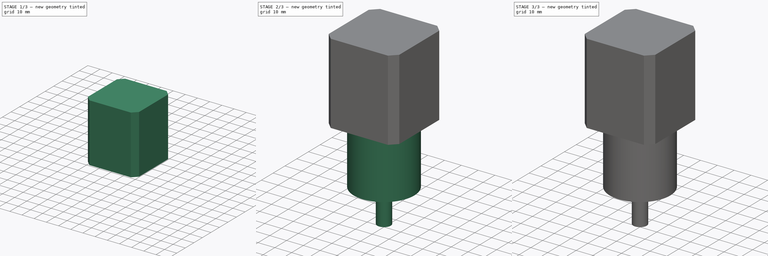
[diagram: build sequence overview — one tinted view per stage of 3, left to right]
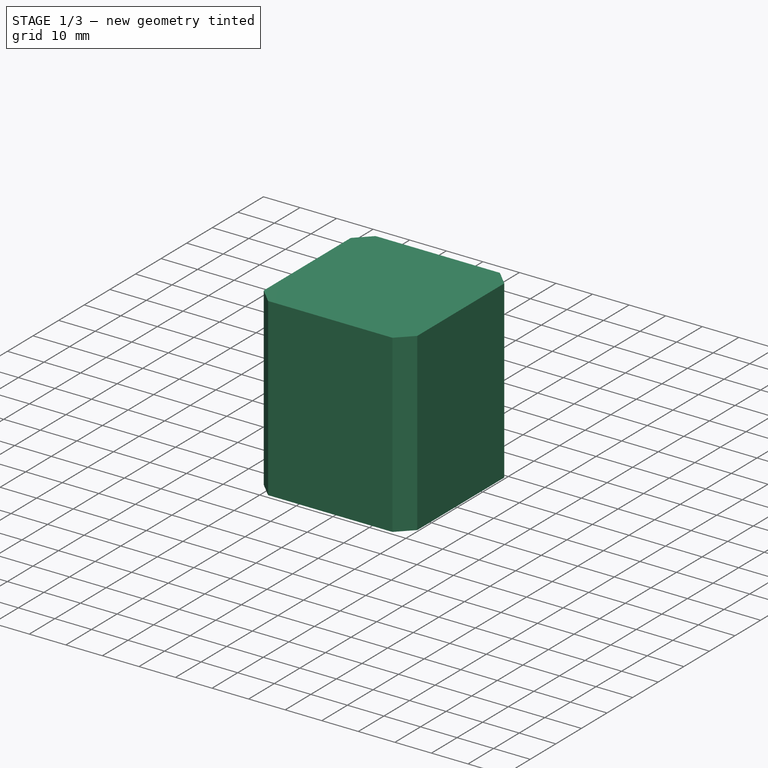
[diagram: stage 1 of 3 — iso view after this stage's code; geometry added in this stage tinted green]
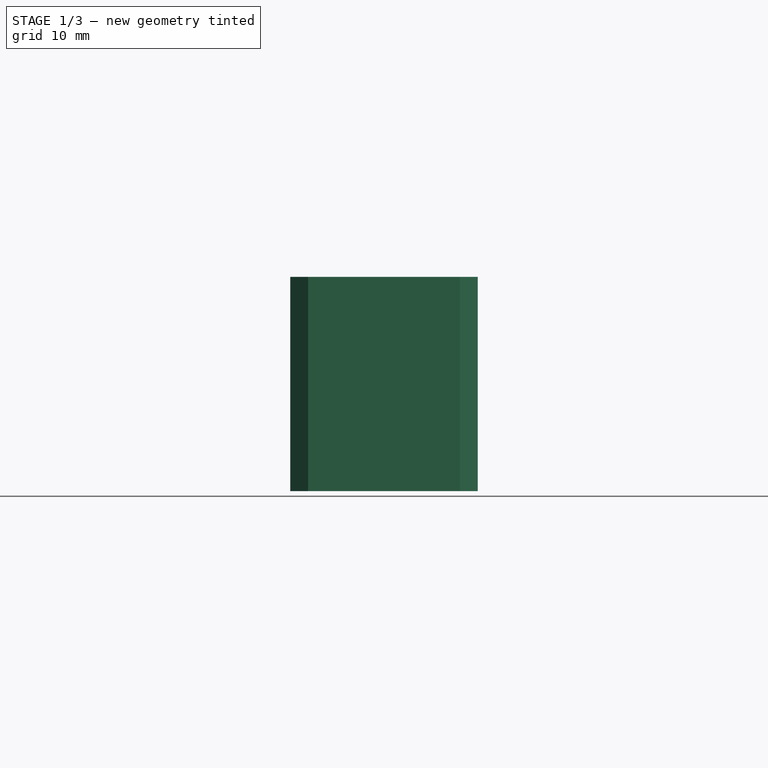
[diagram: stage 1 of 3 — front view after this stage's code; geometry added in this stage tinted green]
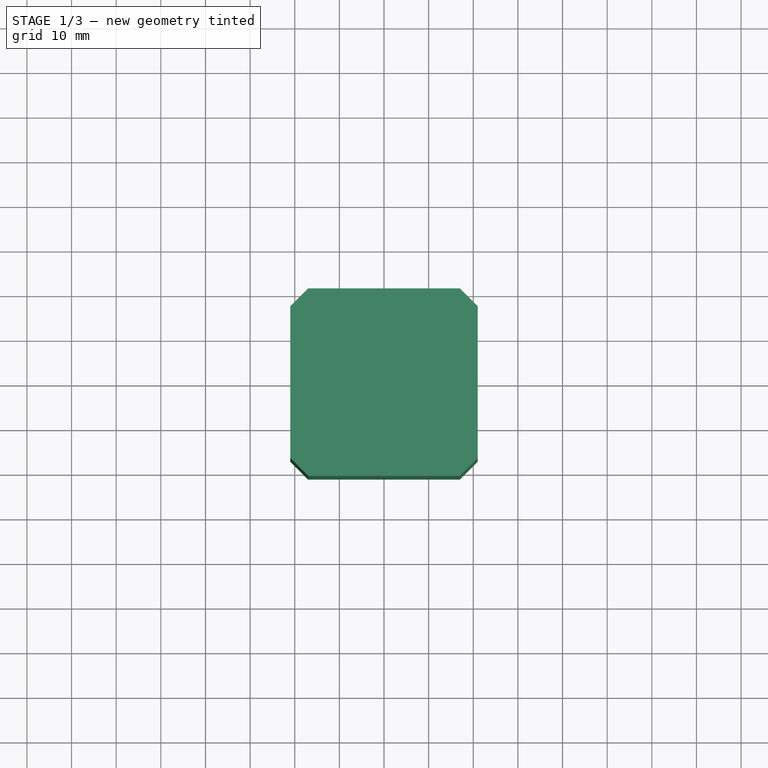
[diagram: stage 1 of 3 — top view after this stage's code; geometry added in this stage tinted green]
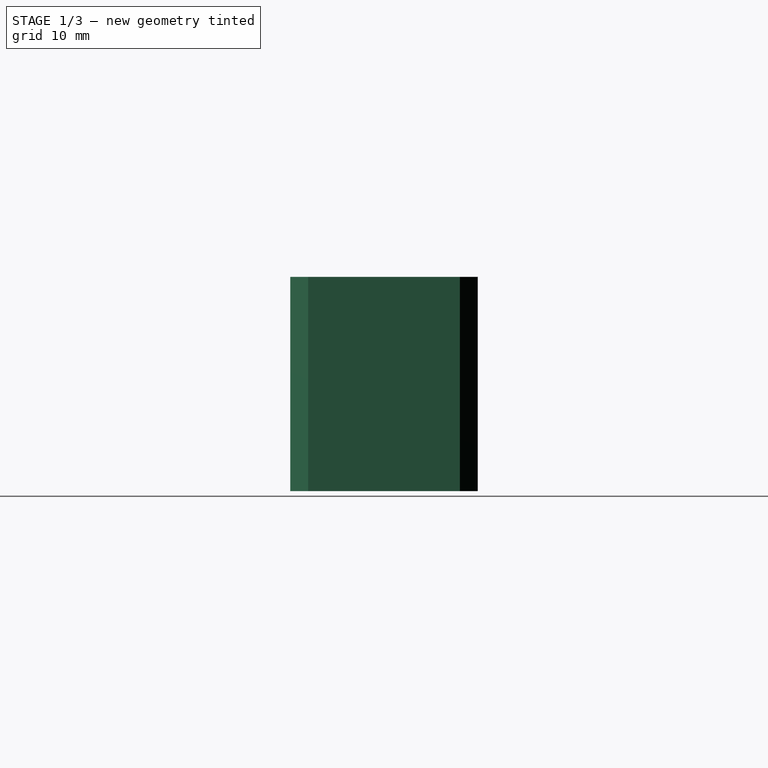
[diagram: stage 1 of 3 — right view after this stage's code; geometry added in this stage tinted green]
FCSTD DOCUMENT  (FreeCAD 0.20R29410 (Git))
Label: Stepper17Geared
License: All rights reserved
LicenseURL: http://en.wikipedia.org/wiki/All_rights_reserved
objects: Sketcher::SketchObject×6, PartDesign::Pad×4, PartDesign::Chamfer×1, PartDesign::CoordinateSystem×1, PartDesign::Pocket×1, PartDesign::Hole×1, PartDesign::Body×1
note: 22 computed .brp shape members not serialized (recipe doc carries the construction recipe); baked Part::Feature solids carry a one-line shape summary decoded from their .brp

FEATURE [Sketcher::SketchObject] Sketch
  FullyConstrained = true
  MapMode = 5
  Support = -> [XY_Plane]
  sketch-geometry (4):
    g0: LineSegment StartX=-21 StartY=21 StartZ=0 EndX=21 EndY=21 EndZ=0
    g1: LineSegment StartX=21 StartY=21 StartZ=0 EndX=21 EndY=-21 EndZ=0
    g2: LineSegment StartX=21 StartY=-21 StartZ=0 EndX=-21 EndY=-21 EndZ=0
    g3: LineSegment StartX=-21 StartY=-21 StartZ=0 EndX=-21 EndY=21 EndZ=0
  constraints (11):
    c: Coincident(g0,g1)
    c: Coincident(g1,g2)
    c: Coincident(g2,g3)
    c: Coincident(g3,g0)
    c: Horizontal(g0)
    c: Horizontal(g2)
    c: Vertical(g1)
    c: Vertical(g3)
    c: Symmetric(g0,g2,g-1)
    c: Equal(g1,g0)
    c: DistanceX(g0,g0) = 42
FEATURE [PartDesign::Pad] Pad  label="Frame"
  Direction = (1,1,1)
  Length = 48
  Length2 = 100
  Profile = -> Sketch
  Type = 0
FEATURE [PartDesign::Chamfer] Chamfer
  Angle = 45
  Base = -> Pad [Edge5,Edge8,Edge2,Edge1]
  BaseFeature = -> Pad
  ChamferType = 0
  FlipDirection = false
  Size = 4
  Size2 = 1
  SupportTransform = false
  UseAllEdges = false
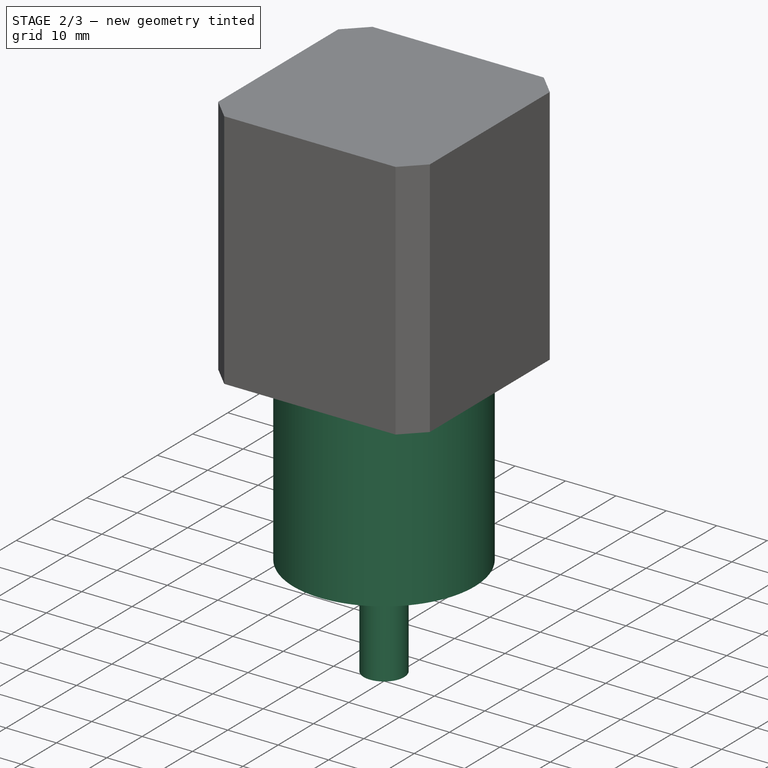
[diagram: stage 2 of 3 — iso view after this stage's code; geometry added in this stage tinted green]
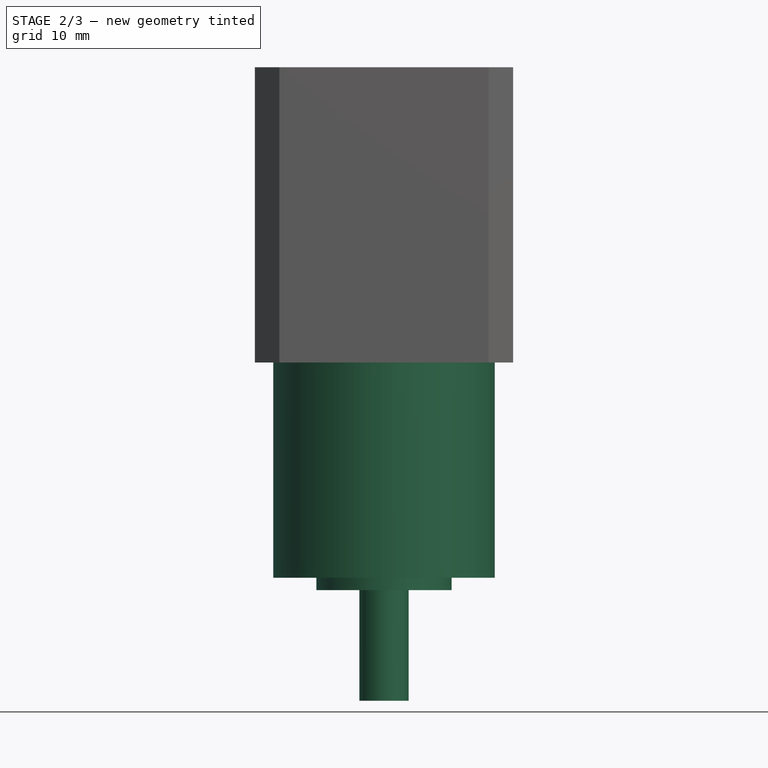
[diagram: stage 2 of 3 — front view after this stage's code; geometry added in this stage tinted green]
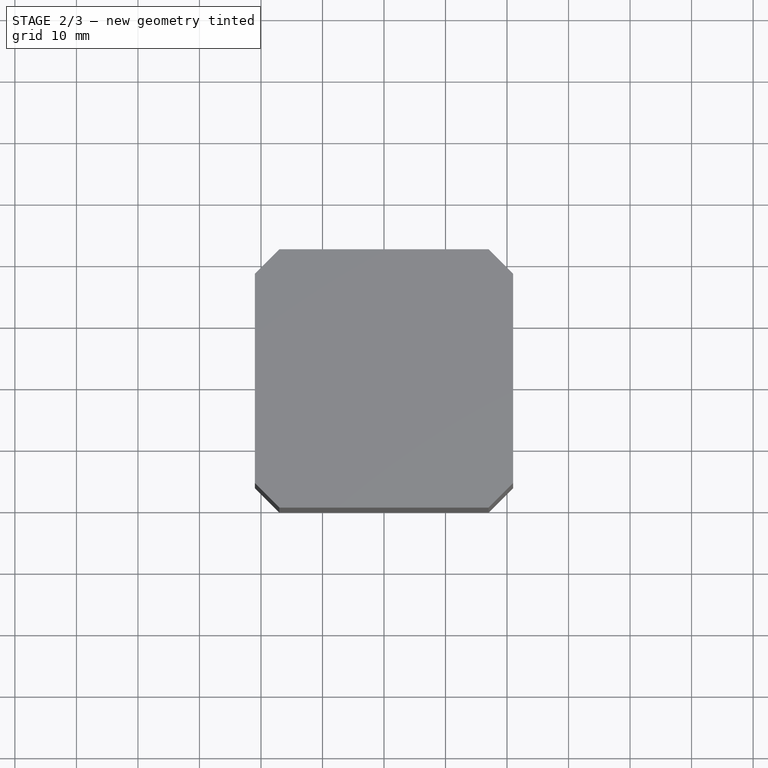
[diagram: stage 2 of 3 — top view after this stage's code; geometry added in this stage tinted green]
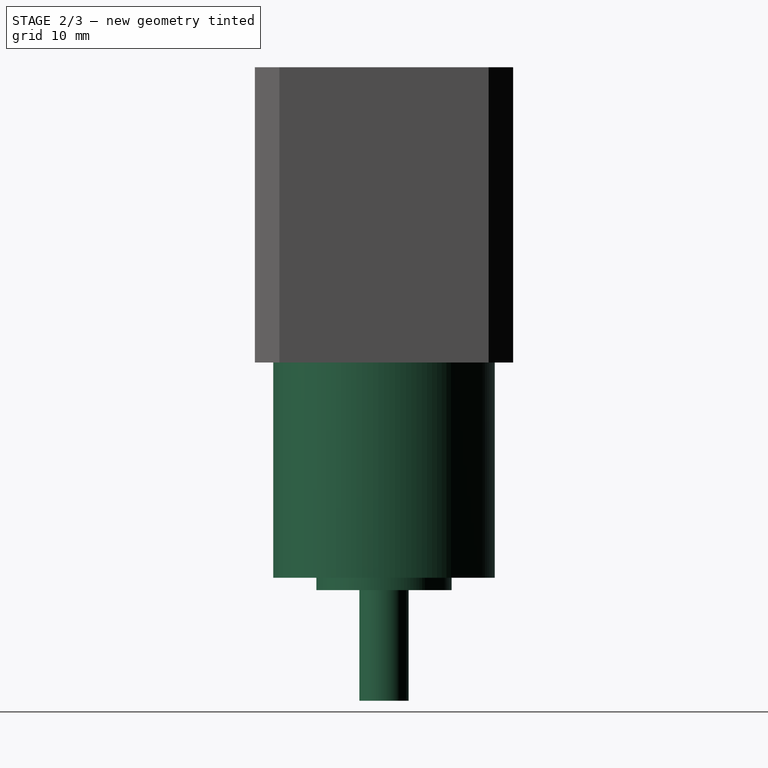
[diagram: stage 2 of 3 — right view after this stage's code; geometry added in this stage tinted green]
FEATURE [Sketcher::SketchObject] Sketch001
  AttachmentOffset = pos=(0,0,-35) rot=(0,0,1;0rad)
  FullyConstrained = true
  MapMode = 5
  Placement = pos=(0,0,-35) rot=(0,0,1;0rad)
  Support = -> [XY_Plane]
  expr: .AttachmentOffset.Base.z = <<GearHead>>.Length * -1
  sketch-geometry (1):
    g0: Circle CenterX=0 CenterY=0 CenterZ=0 NormalX=0 NormalY=0 NormalZ=1 AngleXU=0 Radius=11
  constraints (2):
    c: Coincident(g0,g-1)
    c: Diameter(g0) = 22
FEATURE [Sketcher::SketchObject] Sketch002
  FullyConstrained = true
  MapMode = 2
  Placement = pos=(0,0,-35) rot=(0,0,1;0rad)
  Support = -> [Sketch001]
  sketch-geometry (1):
    g0: Circle CenterX=0 CenterY=0 CenterZ=0 NormalX=0 NormalY=0 NormalZ=1 AngleXU=0 Radius=4
  constraints (2):
    c: Coincident(g0,g-1)
    c: Diameter(g0) = 8
FEATURE [Sketcher::SketchObject] Sketch004
  FullyConstrained = true
  MapMode = 2
  Placement = pos=(0,0,-35) rot=(0,0,1;0rad)
  Support = -> [Sketch001]
  sketch-geometry (10):
    g0: Circle CenterX=9.89949 CenterY=9.89949 CenterZ=0 NormalX=0 NormalY=0 NormalZ=1 AngleXU=0 Radius=1
    g1: LineSegment StartX=-9.89949 StartY=-9.89949 StartZ=0 EndX=-9.89949 EndY=9.89949 EndZ=0
    g2: LineSegment StartX=-9.89949 StartY=9.89949 StartZ=0 EndX=9.89949 EndY=9.89949 EndZ=0
    g3: LineSegment StartX=9.89949 StartY=9.89949 StartZ=0 EndX=9.89949 EndY=-9.89949 EndZ=0
    g4: LineSegment StartX=9.89949 StartY=-9.89949 StartZ=0 EndX=-9.89949 EndY=-9.89949 EndZ=0
    g5: GeomPoint X=0 Y=0 Z=0
    g6: Circle CenterX=-9.89949 CenterY=9.89949 CenterZ=0 NormalX=0 NormalY=0 NormalZ=1 AngleXU=0 Radius=1
    g7: Circle CenterX=-9.89949 CenterY=-9.89949 CenterZ=0 NormalX=0 NormalY=0 NormalZ=1 AngleXU=0 Radius=1
    g8: Circle CenterX=9.89949 CenterY=-9.89949 CenterZ=0 NormalX=0 NormalY=0 NormalZ=1 AngleXU=0 Radius=1
    g9: Circle CenterX=0 CenterY=0 CenterZ=0 NormalX=0 NormalY=0 NormalZ=1 AngleXU=0 Radius=14
  constraints (22):
    c: Diameter(g0) = 2
    c: Coincident(g1,g2)
    c: Coincident(g2,g3)
    c: Coincident(g3,g4)
    c: Coincident(g4,g1)
    c: Horizontal(g2)
    c: Horizontal(g4)
    c: Vertical(g1)
    c: Vertical(g3)
    c: Symmetric(g2,g1,g5)
    c: Coincident(g5,g-1)
    c: Equal(g3,g2)
    c: Coincident(g0,g2)
    c: Coincident(g6,g1)
    c: Coincident(g7,g1)
    c: Coincident(g8,g3)
    c: Equal(g8,g0)
    c: Equal(g0,g6)
    c: Equal(g6,g7)
    c: Coincident(g9,g5)
    c: PointOnObject(g1,g9)
    c: Diameter(g9) = 28
FEATURE [PartDesign::CoordinateSystem] LCS_mount
  AttacherType = Attacher::AttachEngine3D
  MapMode = 2
  Placement = pos=(0,0,-35) rot=(0,0,1;0rad)
  Support = -> [Sketch001]
FEATURE [Sketcher::SketchObject] Sketch005
  FullyConstrained = true
  MapMode = 5
  Support = -> [XY_Plane]
  sketch-geometry (1):
    g0: Circle CenterX=0 CenterY=0 CenterZ=0 NormalX=0 NormalY=0 NormalZ=1 AngleXU=0 Radius=18
  constraints (2):
    c: Coincident(g0,g-1)
    c: Diameter(g0) = 36
FEATURE [PartDesign::Pad] Pad003  label="GearHead"
  BaseFeature = -> Chamfer
  Direction = (0,0,1)
  Length = 35
  Length2 = 10
  Profile = -> Sketch005
  ReferenceAxis = -> Sketch005 [N_Axis]
  Reversed = true
  Type = 0
FEATURE [PartDesign::Pad] Pad001  label="Neck"
  BaseFeature = -> Pad003
  Direction = (0,0,1)
  Length = 2
  Length2 = 100
  Profile = -> Sketch001
  ReferenceAxis = -> Sketch001 [N_Axis]
  Reversed = true
  Type = 0
FEATURE [PartDesign::Pad] Pad002  label="Shaft"
  BaseFeature = -> Pad001
  Direction = (0,0,1)
  Length = 20
  Length2 = 100
  Profile = -> Sketch002
  ReferenceAxis = -> Sketch002 [N_Axis]
  Reversed = true
  Type = 0
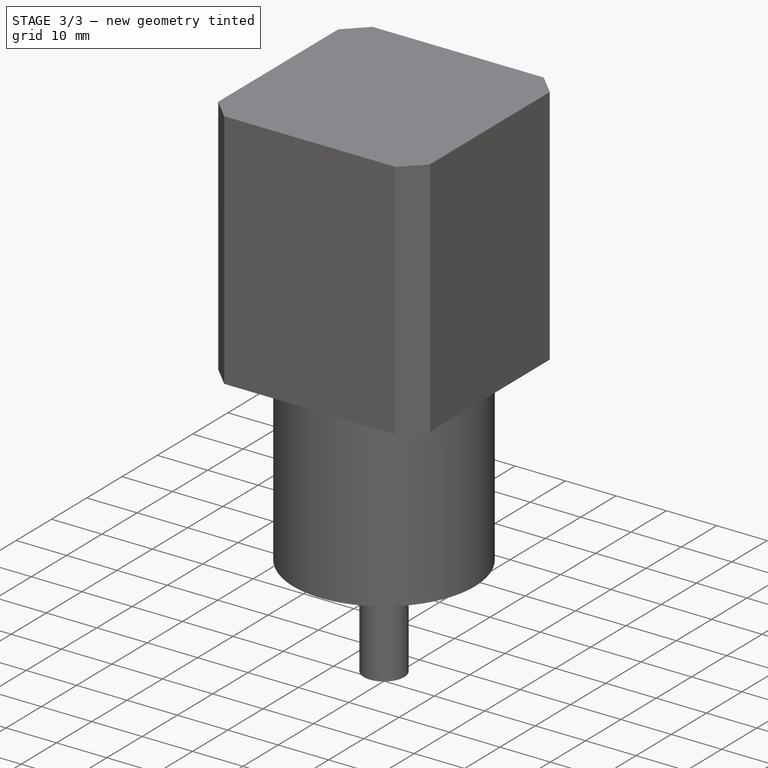
[diagram: stage 3 of 3 — iso view after this stage's code; geometry added in this stage tinted green]
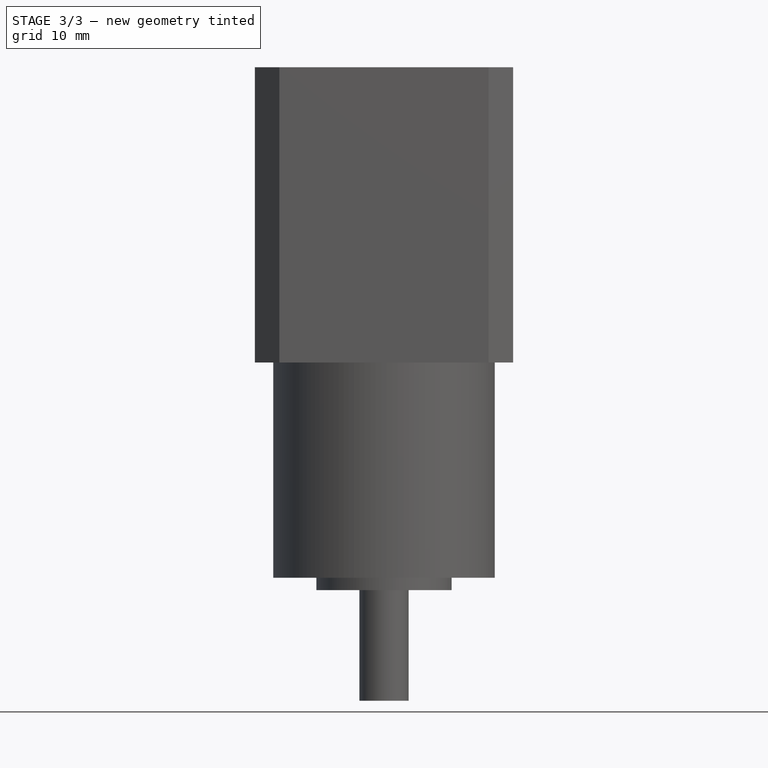
[diagram: stage 3 of 3 — front view after this stage's code; geometry added in this stage tinted green]
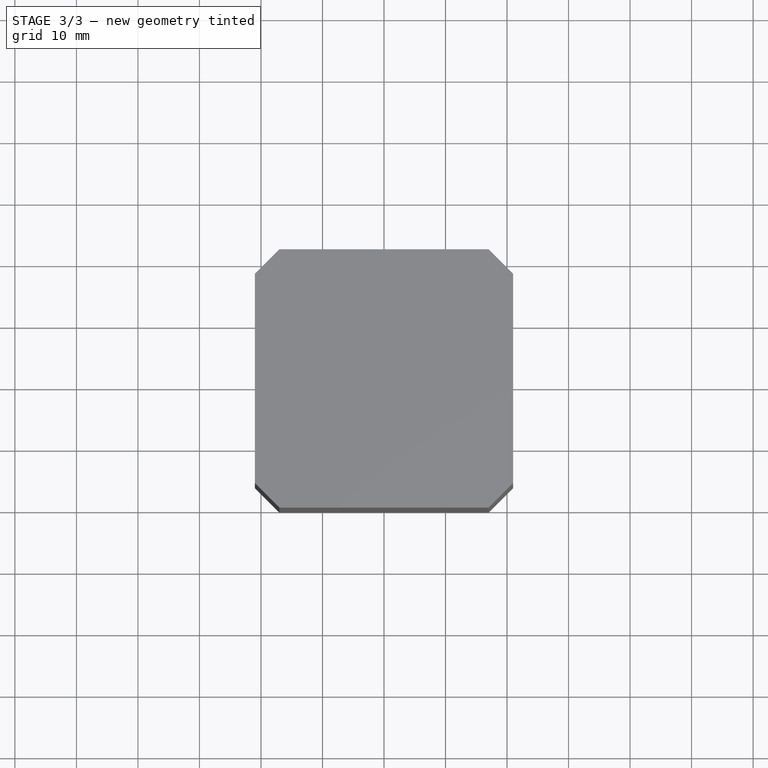
[diagram: stage 3 of 3 — top view after this stage's code; geometry added in this stage tinted green]
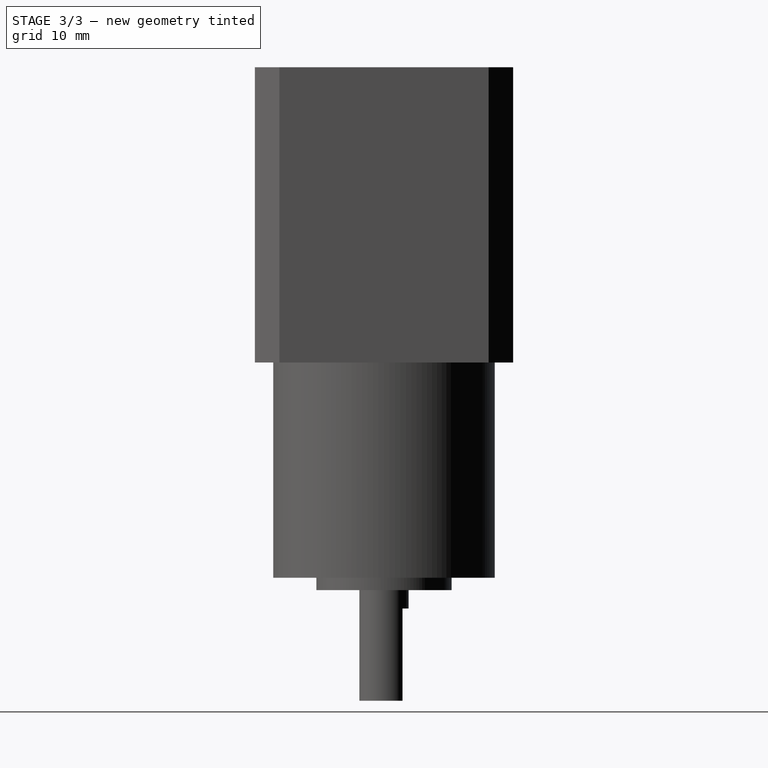
[diagram: stage 3 of 3 — right view after this stage's code; geometry added in this stage tinted green]
FEATURE [Sketcher::SketchObject] Sketch003
  AttachmentOffset = pos=(0,0,-5) rot=(0,0,1;0rad)
  ExternalGeometry = -> [Pad002]
  FullyConstrained = true
  MapMode = 2
  Placement = pos=(0,0,-40) rot=(0,0,1;0rad)
  Support = -> [Sketch001]
  expr: .AttachmentOffset.Base.z = (<<Shaft>>.Length - 15mm) * -1
  sketch-geometry (2):
    g0: ArcOfCircle CenterX=0 CenterY=0 CenterZ=0 NormalX=0 NormalY=0 NormalZ=1 AngleXU=0 Radius=11 StartAngle=0.276227 EndAngle=2.86537
    g1: LineSegment StartX=-10.583 StartY=3 StartZ=0 EndX=10.583 EndY=3 EndZ=0
  constraints (6):
    c: Coincident(g0,g-1)
    c: PointOnObject(g0,g-3)
    c: Coincident(g1,g0)
    c: Coincident(g1,g0)
    c: DistanceY(g0,g0) = 3
    c: Horizontal(g1)
FEATURE [PartDesign::Pocket] Pocket  label="DCut"
  BaseFeature = -> Pad002
  Direction = (0,0,-1)
  Length = 15
  Length2 = 100
  Profile = -> Sketch003
  Type = 0
FEATURE [PartDesign::Hole] Hole  label="MountHoles"
  BaseFeature = -> Pocket
  CustomThreadClearance = 0
  Depth = 4.5
  DepthType = 0
  Diameter = 2.5
  DrillForDepth = false
  DrillPoint = 1
  DrillPointAngle = 118
  HoleCutCountersinkAngle = 90
  HoleCutCustomValues = false
  HoleCutDepth = 0
  HoleCutDiameter = 6.1
  HoleCutType = 0
  ModelThread = false
  Profile = -> Sketch004
  Reversed = true
  Tapered = false
  TaperedAngle = 90
  ThreadClass = 0
  ThreadDepth = 4.5
  ThreadDepthType = 0
  ThreadDirection = 0
  ThreadFit = 0
  ThreadSize = 9
  ThreadType = 1
  Threaded = true
  UseCustomThreadClearance = false
FEATURE [PartDesign::Body] Body
  Group = -> [Sketch,Pad,Chamfer,Sketch001,Sketch005,Pad003,Pad001,Sketch002,Pad002,Sketch003,Pocket,Sketch004,LCS_mount,Hole]
  Origin = -> Origin
  Tip = -> Hole
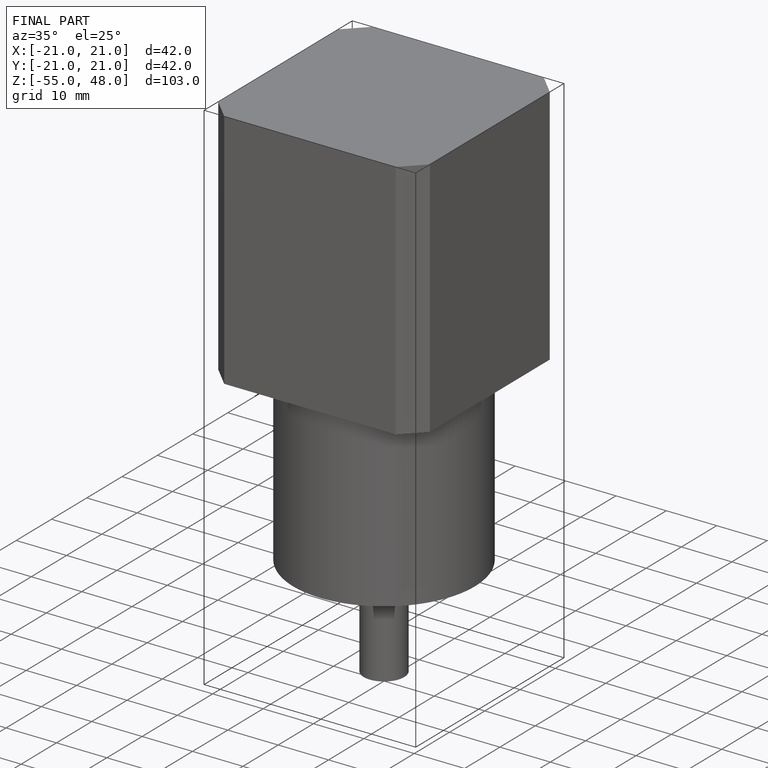
[diagram: finished part — iso view with bounding-box wireframe]
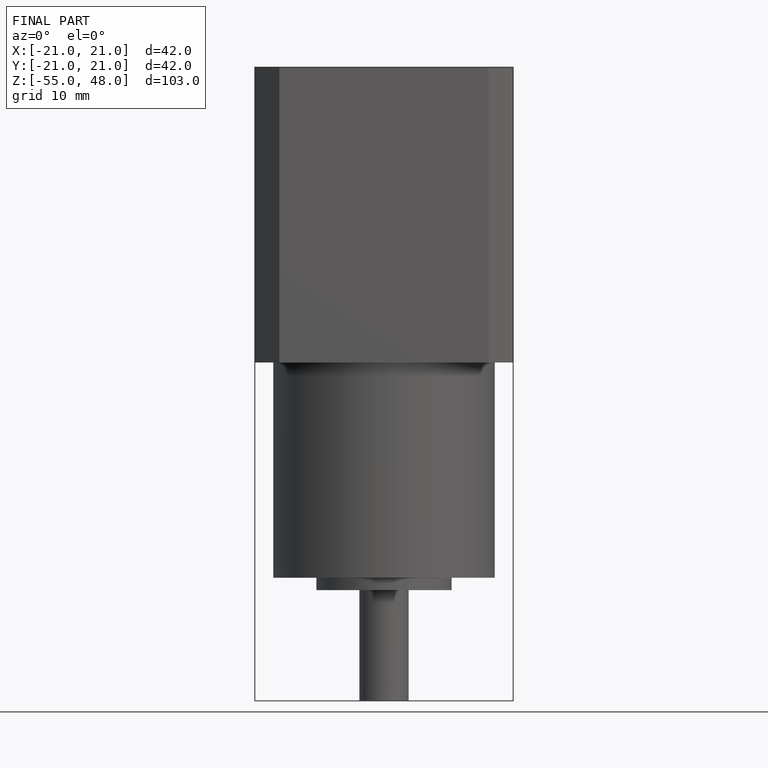
[diagram: finished part — front view with bounding-box wireframe]
